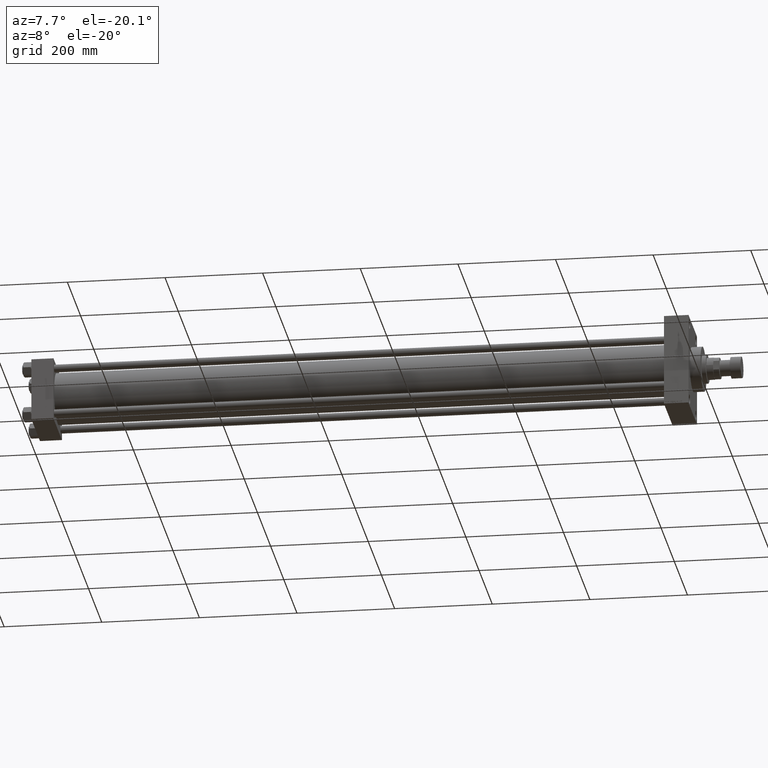
[diagram: clean part render]
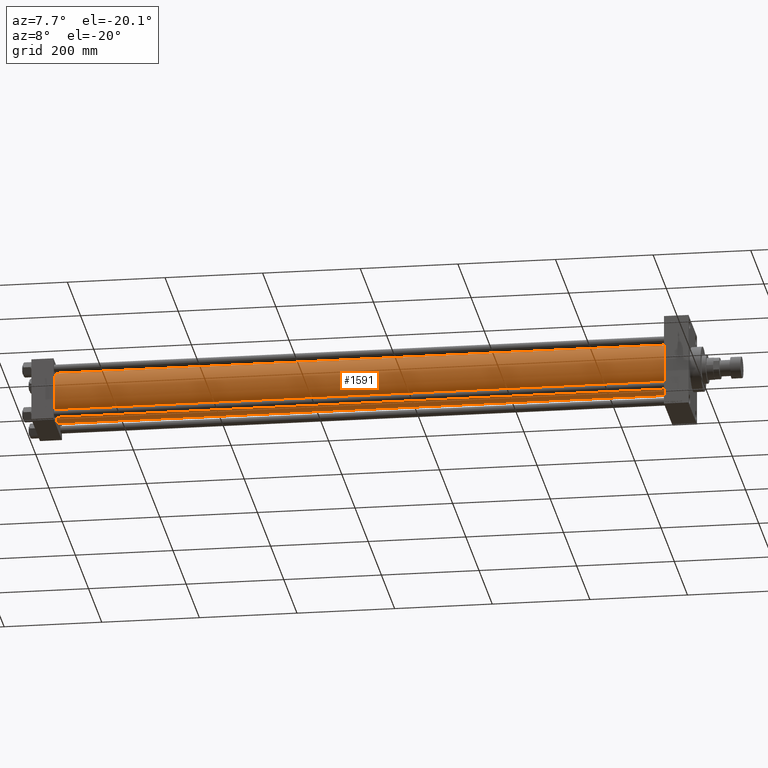
[diagram: same view with one face highlighted and labeled with its STEP entity id]
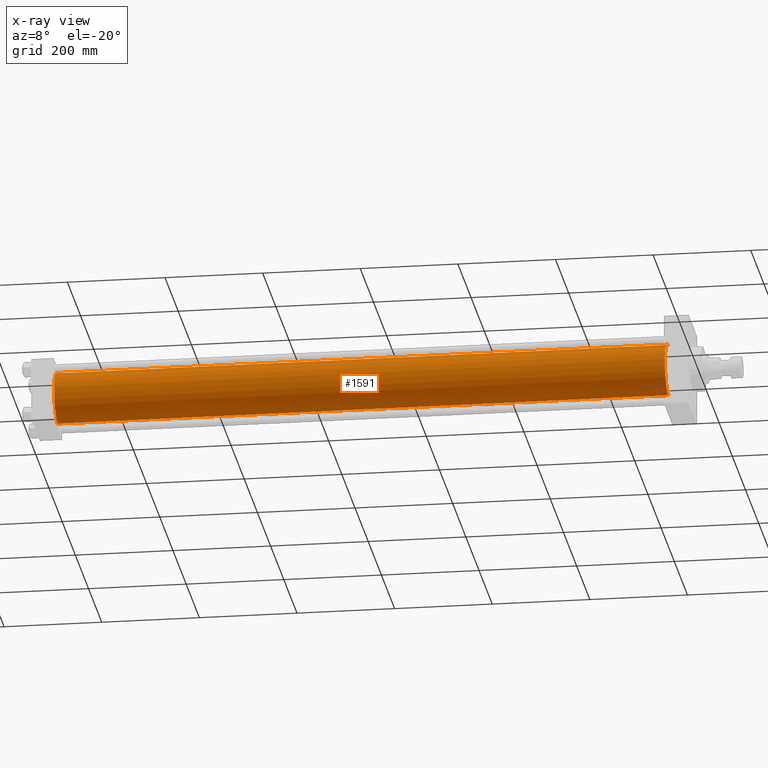
[diagram: x-ray of the same camera — body ghosted, the highlighted face saturated]
A machine part, auxiliary view. The second image highlights one B-rep face of the part: STEP entity #1591.
The next image is the same camera in x-ray: the body ghosted, the highlighted face saturated — about 0% of this face is hidden behind the body in this view.
In plain terms, the highlighted cylindrical surface (edge-blend (fillet) strip) has radius 53 mm, axis along (-1, -0, -0).
Its self-contained STEP definition (entity closure, byte-faithful):
#1549 = EDGE_CURVE ( 'NONE', #4041, #5934, #44895, .T. ) ;
#1591 = ADVANCED_FACE ( 'NONE', ( #24107 ), #35792, .T. ) ;
#2513 = CARTESIAN_POINT ( 'NONE',  ( 44.99999999999992895, 3.888542821515762466E-15, -53.00000000000000711 ) ) ;
#2631 = EDGE_LOOP ( 'NONE', ( #15173, #47882, #42599, #9981 ) ) ;
#3356 = CARTESIAN_POINT ( 'NONE',  ( 1295.999999999999773, -2.602085213965210642E-15, 53.00000000000000711 ) ) ;
#4041 = VERTEX_POINT ( 'NONE', #46815 ) ;
#5934 = VERTEX_POINT ( 'NONE', #14073 ) ;
#6761 = LINE ( 'NONE', #3356, #11014 ) ;
#9272 = CARTESIAN_POINT ( 'NONE',  ( 1295.999999999999773, -2.602085213965210642E-15, 0.000000000000000000 ) ) ;
#9414 = EDGE_CURVE ( 'NONE', #5934, #14122, #34050, .T. ) ;
#9981 = ORIENTED_EDGE ( 'NONE', *, *, #27764, .T. ) ;
#11009 = VERTEX_POINT ( 'NONE', #13731 ) ;
#11014 = VECTOR ( 'NONE', #18180, 1000.000000000000000 ) ;
#13731 = CARTESIAN_POINT ( 'NONE',  ( 44.99999999999992895, -2.602085213965210642E-15, 53.00000000000000711 ) ) ;
#14073 = CARTESIAN_POINT ( 'NONE',  ( 1295.999999999999773, 3.888542821515762466E-15, -53.00000000000000711 ) ) ;
#14122 = VERTEX_POINT ( 'NONE', #2513 ) ;
#15173 = ORIENTED_EDGE ( 'NONE', *, *, #9414, .F. ) ;
#16868 = AXIS2_PLACEMENT_3D ( 'NONE', #9272, #38950, #17283 ) ;
#17043 = CARTESIAN_POINT ( 'NONE',  ( 1295.999999999999773, -2.602085213965210642E-15, 0.000000000000000000 ) ) ;
#17283 = DIRECTION ( 'NONE',  ( 0.000000000000000000, 0.000000000000000000, 1.000000000000000000 ) ) ;
#17527 = DIRECTION ( 'NONE',  ( 1.000000000000000000, 0.000000000000000000, 0.000000000000000000 ) ) ;
#18180 = DIRECTION ( 'NONE',  ( -1.000000000000000000, -0.000000000000000000, -0.000000000000000000 ) ) ;
#21184 = DIRECTION ( 'NONE',  ( 0.000000000000000000, 0.000000000000000000, -1.000000000000000000 ) ) ;
#23074 = AXIS2_PLACEMENT_3D ( 'NONE', #42179, #39675, #36020 ) ;
#23577 = DIRECTION ( 'NONE',  ( -1.000000000000000000, -0.000000000000000000, -0.000000000000000000 ) ) ;
#23912 = AXIS2_PLACEMENT_3D ( 'NONE', #17043, #17527, #21184 ) ;
#24107 = FACE_OUTER_BOUND ( 'NONE', #2631, .T. ) ;
#27764 = EDGE_CURVE ( 'NONE', #11009, #14122, #37837, .T. ) ;
#28071 = VECTOR ( 'NONE', #23577, 1000.000000000000000 ) ;
#34050 = LINE ( 'NONE', #34773, #28071 ) ;
#34773 = CARTESIAN_POINT ( 'NONE',  ( 1295.999999999999773, 3.888542821515762466E-15, -53.00000000000000711 ) ) ;
#35792 = CYLINDRICAL_SURFACE ( 'NONE', #16868, 53.00000000000000711 ) ;
#36020 = DIRECTION ( 'NONE',  ( 0.000000000000000000, 0.000000000000000000, 1.000000000000000000 ) ) ;
#37837 = CIRCLE ( 'NONE', #23074, 53.00000000000000711 ) ;
#38950 = DIRECTION ( 'NONE',  ( -1.000000000000000000, -0.000000000000000000, -0.000000000000000000 ) ) ;
#39675 = DIRECTION ( 'NONE',  ( 1.000000000000000000, -0.000000000000000000, 0.000000000000000000 ) ) ;
#41244 = EDGE_CURVE ( 'NONE', #4041, #11009, #6761, .T. ) ;
#42179 = CARTESIAN_POINT ( 'NONE',  ( 44.99999999999992895, -2.602085213965210642E-15, 0.000000000000000000 ) ) ;
#42599 = ORIENTED_EDGE ( 'NONE', *, *, #41244, .T. ) ;
#44895 = CIRCLE ( 'NONE', #23912, 53.00000000000000711 ) ;
#46815 = CARTESIAN_POINT ( 'NONE',  ( 1295.999999999999773, -2.602085213965210642E-15, 53.00000000000000711 ) ) ;
#47882 = ORIENTED_EDGE ( 'NONE', *, *, #1549, .F. ) ;